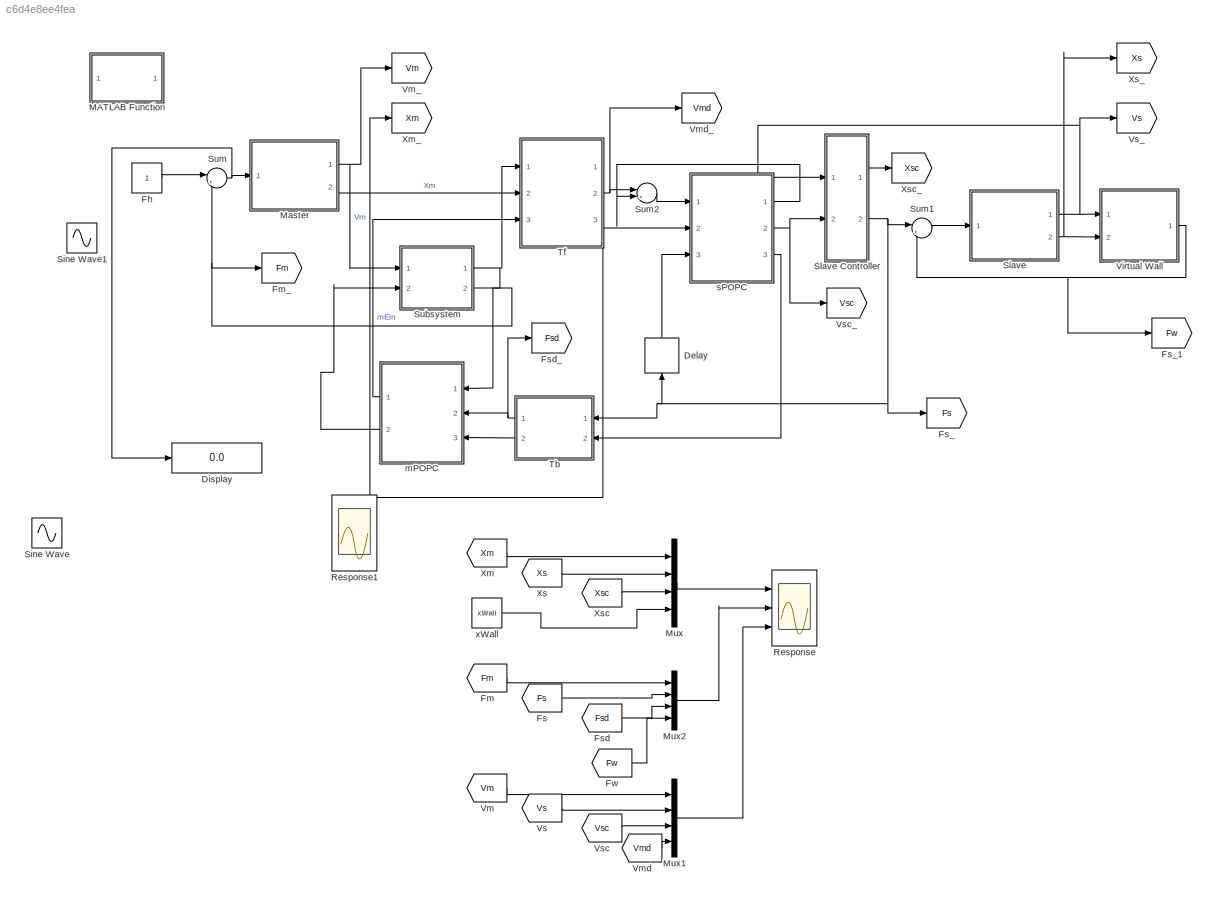
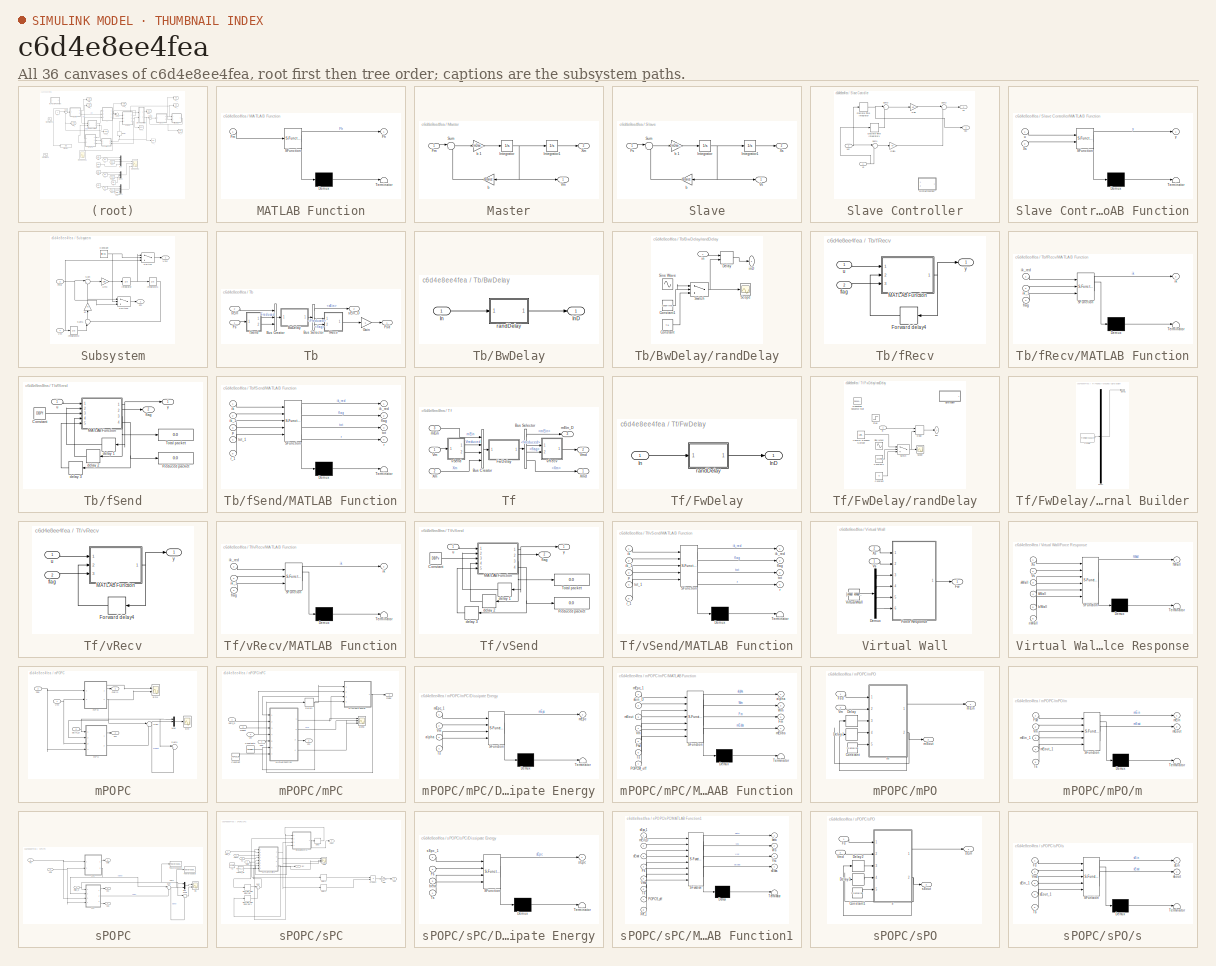
[diagram: thumbnail index - all 36 canvases of the model, root first then tree order]
MODEL slx_c6d4e8ee4fea
KIND model
BLOCK [Delay] Delay
  DelayLength = 1
  InitialCondition = 0
  InputPortMap = u0
  Ports = [1, 1]
  SampleTime = tSampling
BLOCK [Display] Display
  Decimation = 1
  Lockdown = off
  Ports = [1]
BLOCK [Constant] Fh
BLOCK [From] Fm
  GotoTag = Fm
BLOCK [Goto] Fm_
  GotoTag = Fm
BLOCK [From] Fs
  GotoTag = Fs
BLOCK [Goto] Fs_
  GotoTag = Fs
BLOCK [Goto] Fs_1
  GotoTag = Fw
BLOCK [From] Fsd
  GotoTag = Fsd
BLOCK [Goto] Fsd_
  GotoTag = Fsd
BLOCK [From] Fw
  GotoTag = Fw
BLOCK [SubSystem] MATLAB Function
  ErrorFcn = Stateflow.Translate.translate
  FunctionWithSeparateData = off
  MaskHideContents = off
  MinAlgLoopOccurrences = off
  Opaque = off
  PermitHierarchicalResolution = ExplicitOnly
  Ports = [1, 1]
  PropExecContextOutsideSubsystem = off
  RTWSystemCode = Auto
  RequestExecContextInheritance = off
  SFBlockType = MATLAB Function
  TreatAsAtomicUnit = on
BLOCK [Demux] MATLAB Function/ Demux 
  Outputs = 1
  Ports = [1, 1]
BLOCK [S-Function] MATLAB Function/ SFunction 
  EnableBusSupport = on
  FunctionName = sf_sfun
  PortCounts = [1 2]
  Ports = [1, 2]
  Tag = Stateflow S-Function simTPDA1 12
BLOCK [Terminator] MATLAB Function/ Terminator 
BLOCK [Outport] MATLAB Function/Fh
  IconDisplay = Port number
BLOCK [Inport] MATLAB Function/Fm
  IconDisplay = Port number
BLOCK [SubSystem] Master
  FunctionWithSeparateData = off
  MaskHideContents = off
  MinAlgLoopOccurrences = off
  Opaque = off
  Ports = [1, 2]
  PropExecContextOutsideSubsystem = off
  RTWSystemCode = Auto
  RequestExecContextInheritance = off
BLOCK [Inport] Master/Fm
  IconDisplay = Port number
BLOCK [Integrator] Master/Integrator
  InitialCondition = v0Device
  LowerSaturationLimit = -10
  Ports = [1, 1]
  UpperSaturationLimit = 10
BLOCK [Integrator] Master/Integrator1
  InitialCondition = xDevice
  LowerSaturationLimit = -10
  Ports = [1, 1]
  UpperSaturationLimit = 10
BLOCK [Sum] Master/Sum
  IconShape = round
  InputSameDT = off
  Inputs = |+-
  OutDataTypeStr = Inherit: Inherit via internal rule
  Ports = [2, 1]
  SaturateOnIntegerOverflow = off
BLOCK [Outport] Master/Vm
  IconDisplay = Port number
BLOCK [Outport] Master/Xm
  IconDisplay = Port number
  Port = 2
BLOCK [Gain] Master/b 
  Gain = bDevice
  OutDataTypeStr = Inherit: Inherit via internal rule
  ParamDataTypeStr = Inherit: Inherit via internal rule
  SaturateOnIntegerOverflow = off
BLOCK [Gain] Master/b 1
  Gain = 1/mDevice
  OutDataTypeStr = Inherit: Inherit via internal rule
  ParamDataTypeStr = Inherit: Inherit via internal rule
  SaturateOnIntegerOverflow = off
BLOCK [Mux] Mux
  DisplayOption = bar
  Ports = [4, 1]
BLOCK [Mux] Mux1
  DisplayOption = bar
  Ports = [4, 1]
BLOCK [Mux] Mux2
  DisplayOption = bar
  Ports = [4, 1]
BLOCK [Scope] Response
  DataFormat = StructureWithTime
  Decimation = 10
  Floating = off
  LegendLocations = 0.88327     0.76295    0.062038     0.10065\n0.89993     0.40517    0.055391     0.10065\n 0.8998     0.21759    0.058346     0.10065
  LimitDataPoints = off
  NumInputPorts = 3
  Ports = [3]
  SampleInput = on
  SampleTime = 0
  ShowLegends = on
  TimeRange = 4.291187739463602
  YMax = 1~150~175
  YMin = -3~-500~-150
BLOCK [Scope] Response1
  DataFormat = StructureWithTime
  Decimation = 10
  Floating = off
  LegendLocations = 0.80005     0.91405     0.15565    0.030394\n0.80005     0.60463     0.15565    0.030394\n0.80005     0.29522     0.15565    0.030394
  LimitDataPoints = off
  NumInputPorts = 3
  Ports = [3]
  SampleInput = on
  SampleTime = 0
  SaveName = ScopeData1
  ShowLegends = on
  TimeRange = 0.3838709677419353
  YMax = 10~1.5~1
  YMin = -45~-0.5~-1
BLOCK [Sin] Sine Wave
  Amplitude = 1.5
  Frequency = 10
  Ports = [0, 1]
  SampleTime = 0
BLOCK [Sin] Sine Wave1
  Bias = 1
  Frequency = 5
  Ports = [0, 1]
  SampleTime = 0
BLOCK [SubSystem] Slave
  FunctionWithSeparateData = off
  MaskHideContents = off
  MinAlgLoopOccurrences = off
  Opaque = off
  Ports = [1, 2]
  PropExecContextOutsideSubsystem = off
  RTWSystemCode = Auto
  RequestExecContextInheritance = off
BLOCK [SubSystem] Slave Controller
  FunctionWithSeparateData = off
  MaskHideContents = off
  MinAlgLoopOccurrences = off
  Opaque = off
  Ports = [2, 2]
  PropExecContextOutsideSubsystem = off
  RTWSystemCode = Auto
  RequestExecContextInheritance = off
BLOCK [DiscreteIntegrator] Slave Controller/Discrete-Time Integrator
  ICPrevOutput = DiscIntNeverNeededParam
  ICPrevScaledInput = DiscIntNeverNeededParam
  Ports = [1, 1]
  SampleTime = tSampling
BLOCK [DiscreteIntegrator] Slave Controller/Discrete-Time Integrator1
  ICPrevOutput = DiscIntNeverNeededParam
  ICPrevScaledInput = DiscIntNeverNeededParam
  Ports = [1, 1]
  SampleTime = tSampling
BLOCK [Outport] Slave Controller/Fs
  IconDisplay = Port number
  Port = 2
BLOCK [Gain] Slave Controller/Gain
  Gain = Kp
  OutDataTypeStr = Inherit: Inherit via internal rule
  ParamDataTypeStr = Inherit: Inherit via internal rule
  SaturateOnIntegerOverflow = off
BLOCK [Gain] Slave Controller/Gain1
  Gain = Kv
  OutDataTypeStr = Inherit: Inherit via internal rule
  ParamDataTypeStr = Inherit: Inherit via internal rule
  SaturateOnIntegerOverflow = off
BLOCK [SubSystem] Slave Controller/MATLAB Function
  ErrorFcn = Stateflow.Translate.translate
  FunctionWithSeparateData = off
  MaskHideContents = off
  MinAlgLoopOccurrences = off
  Opaque = off
  PermitHierarchicalResolution = ExplicitOnly
  Ports = [2, 1]
  PropExecContextOutsideSubsystem = off
  RTWSystemCode = Auto
  RequestExecContextInheritance = off
  SFBlockType = MATLAB Function
  TreatAsAtomicUnit = on
BLOCK [Demux] Slave Controller/MATLAB Function/ Demux 
  Outputs = 1
  Ports = [1, 1]
BLOCK [S-Function] Slave Controller/MATLAB Function/ SFunction 
  EnableBusSupport = on
  FunctionName = sf_sfun
  PortCounts = [2 2]
  Ports = [2, 2]
  Tag = Stateflow S-Function simTPDA1 11
BLOCK [Terminator] Slave Controller/MATLAB Function/ Terminator 
BLOCK [Inport] Slave Controller/MATLAB Function/Xs
  IconDisplay = Port number
  Port = 2
BLOCK [Inport] Slave Controller/MATLAB Function/u
  IconDisplay = Port number
BLOCK [Outport] Slave Controller/MATLAB Function/y
  IconDisplay = Port number
BLOCK [Sum] Slave Controller/Sum1
  IconShape = round
  InputSameDT = off
  Inputs = |+-
  OutDataTypeStr = Inherit: Inherit via internal rule
  Ports = [2, 1]
  SaturateOnIntegerOverflow = off
BLOCK [Sum] Slave Controller/Sum2
  IconShape = round
  InputSameDT = off
  Inputs = |++
  OutDataTypeStr = Inherit: Inherit via internal rule
  Ports = [2, 1]
  SaturateOnIntegerOverflow = off
BLOCK [Sum] Slave Controller/Sum3
  IconShape = round
  InputSameDT = off
  Inputs = |+-
  OutDataTypeStr = Inherit: Inherit via internal rule
  Ports = [2, 1]
  SaturateOnIntegerOverflow = off
BLOCK [Inport] Slave Controller/Vs
  IconDisplay = Port number
BLOCK [Inport] Slave Controller/Vsc
  IconDisplay = Port number
  Port = 2
BLOCK [Outport] Slave Controller/Xsc
  IconDisplay = Port number
BLOCK [Inport] Slave/Fs
  IconDisplay = Port number
BLOCK [Integrator] Slave/Integrator
  InitialCondition = v0Device
  LowerSaturationLimit = -10
  Ports = [1, 1]
  UpperSaturationLimit = 10
BLOCK [Integrator] Slave/Integrator1
  InitialCondition = xDevice
  LowerSaturationLimit = -10
  Ports = [1, 1]
  UpperSaturationLimit = 10
BLOCK [Sum] Slave/Sum
  IconShape = round
  InputSameDT = off
  Inputs = |+-
  OutDataTypeStr = Inherit: Inherit via internal rule
  Ports = [2, 1]
  SaturateOnIntegerOverflow = off
BLOCK [Outport] Slave/Vs
  IconDisplay = Port number
BLOCK [Outport] Slave/Xs
  IconDisplay = Port number
  Port = 2
BLOCK [Gain] Slave/b 
  Gain = bDevice
  OutDataTypeStr = Inherit: Inherit via internal rule
  ParamDataTypeStr = Inherit: Inherit via internal rule
  SaturateOnIntegerOverflow = off
BLOCK [Gain] Slave/b 1
  Gain = 1/mDevice
  OutDataTypeStr = Inherit: Inherit via internal rule
  ParamDataTypeStr = Inherit: Inherit via internal rule
  SaturateOnIntegerOverflow = off
BLOCK [SubSystem] Subsystem
  FunctionWithSeparateData = off
  MaskHideContents = off
  MinAlgLoopOccurrences = off
  Opaque = off
  Ports = [2, 2]
  PropExecContextOutsideSubsystem = off
  RTWSystemCode = Auto
  RequestExecContextInheritance = off
BLOCK [Gain] Subsystem/1//mc
  Gain = 1/mc
  OutDataTypeStr = Inherit: Inherit via internal rule
  ParamDataTypeStr = Inherit: Inherit via internal rule
  SaturateOnIntegerOverflow = off
BLOCK [Constant] Subsystem/Constant
  Value = filterON
BLOCK [Outport] Subsystem/Fm
  IconDisplay = Port number
  Port = 2
BLOCK [Inport] Subsystem/Fmd
  IconDisplay = Port number
  Port = 2
BLOCK [Integrator] Subsystem/Integrator
  Ports = [1, 1]
BLOCK [Integrator] Subsystem/Integrator1
  Ports = [1, 1]
BLOCK [Integrator] Subsystem/Integrator2
  Ports = [1, 1]
BLOCK [Sum] Subsystem/Sum
  IconShape = round
  InputSameDT = off
  Inputs = |+-
  OutDataTypeStr = Inherit: Inherit via internal rule
  Ports = [2, 1]
  SaturateOnIntegerOverflow = off
BLOCK [Sum] Subsystem/Sum1
  IconShape = round
  InputSameDT = off
  Inputs = |-+
  OutDataTypeStr = Inherit: Inherit via internal rule
  Ports = [2, 1]
  SaturateOnIntegerOverflow = off
BLOCK [Switch] Subsystem/Switch
  Criteria = u2 > Threshold
  InputSameDT = off
  SaturateOnIntegerOverflow = off
BLOCK [Switch] Subsystem/Switch1
  Criteria = u2 > Threshold
  InputSameDT = off
  SaturateOnIntegerOverflow = off
BLOCK [Inport] Subsystem/Vm
  IconDisplay = Port number
BLOCK [Outport] Subsystem/Vmc
  IconDisplay = Port number
BLOCK [Gain] Subsystem/kc
  Gain = kc
  OutDataTypeStr = Inherit: Inherit via internal rule
  ParamDataTypeStr = Inherit: Inherit via internal rule
  SaturateOnIntegerOverflow = off
BLOCK [Sum] Sum
  IconShape = round
  InputSameDT = off
  Inputs = |++
  OutDataTypeStr = Inherit: Inherit via internal rule
  Ports = [2, 1]
  SaturateOnIntegerOverflow = off
BLOCK [Sum] Sum1
  IconShape = round
  InputSameDT = off
  Inputs = |++
  OutDataTypeStr = Inherit: Inherit via internal rule
  Ports = [2, 1]
  SaturateOnIntegerOverflow = off
BLOCK [Sum] Sum2
  IconShape = round
  InputSameDT = off
  Inputs = |++
  OutDataTypeStr = Inherit: Inherit via internal rule
  Ports = [2, 1]
  SaturateOnIntegerOverflow = off
BLOCK [SubSystem] Tb
  FunctionWithSeparateData = off
  MaskHideContents = off
  MinAlgLoopOccurrences = off
  Opaque = off
  Ports = [2, 2]
  PropExecContextOutsideSubsystem = off
  RTWSystemCode = Auto
  RequestExecContextInheritance = off
BLOCK [BusCreator] Tb/Bus Creator
  DisplayOption = bar
  Inputs = 3
  Ports = [3, 1]
BLOCK [BusSelector] Tb/Bus Selector
  OutputSignals = sEin,Freduced,flag
  Ports = [1, 3]
BLOCK [SubSystem] Tb/BwDelay
  FunctionWithSeparateData = off
  MaskHideContents = off
  MinAlgLoopOccurrences = off
  Opaque = off
  Ports = [1, 1]
  PropExecContextOutsideSubsystem = off
  RTWSystemCode = Auto
  RequestExecContextInheritance = off
BLOCK [Inport] Tb/BwDelay/In
  IconDisplay = Port number
BLOCK [Outport] Tb/BwDelay/InD
  IconDisplay = Port number
BLOCK [SubSystem] Tb/BwDelay/randDelay
  FunctionWithSeparateData = off
  MaskHideContents = off
  MinAlgLoopOccurrences = off
  Opaque = off
  Ports = [1, 1]
  PropExecContextOutsideSubsystem = off
  RTWSystemCode = Auto
  RequestExecContextInheritance = off
BLOCK [Constant] Tb/BwDelay/randDelay/Constant
  Value = Tb
BLOCK [Constant] Tb/BwDelay/randDelay/Constant1
  Value = randTime
BLOCK [Delay] Tb/BwDelay/randDelay/Delay
  DelayLength = T1
  DelayLengthSource = Input port
  DelayLengthUpperLimit = Tb
  InitialCondition = 0
  InputPortMap = u0,p1
  Ports = [2, 1]
  SampleTime = tSampling
BLOCK [Scope] Tb/BwDelay/randDelay/Scope
  DataFormat = StructureWithTime
  Floating = off
  LimitDataPoints = off
  NumInputPorts = 1
  Ports = [1]
  SaveName = ScopeData6
  ShowLegends = off
  YMax = 112.49995
  YMin = -12.49956
BLOCK [Sin] Tb/BwDelay/randDelay/Sine Wave
  Amplitude = Tb
  Bias = Tb+1
  Ports = [0, 1]
  SampleTime = tSampling
BLOCK [Switch] Tb/BwDelay/randDelay/Switch
  Criteria = u2 ~= 0
  InputSameDT = off
  SaturateOnIntegerOverflow = off
BLOCK [Inport] Tb/BwDelay/randDelay/in
  IconDisplay = Port number
BLOCK [Outport] Tb/BwDelay/randDelay/inD
  IconDisplay = Port number
BLOCK [Inport] Tb/Fs
  IconDisplay = Port number
BLOCK [Outport] Tb/Fsd
  IconDisplay = Port number
BLOCK [Gain] Tb/Gain
  Gain = -1
  OutDataTypeStr = Inherit: Inherit via internal rule
  ParamDataTypeStr = Inherit: Inherit via internal rule
  SaturateOnIntegerOverflow = off
BLOCK [SubSystem] Tb/fRecv
  FunctionWithSeparateData = off
  MaskHideContents = off
  MinAlgLoopOccurrences = off
  Opaque = off
  Ports = [2, 1]
  PropExecContextOutsideSubsystem = off
  RTWSystemCode = Auto
  RequestExecContextInheritance = off
BLOCK [Delay] Tb/fRecv/Forward delay4
  DelayLength = 1
  InitialCondition = 0
  InputPortMap = u0
  InputProcessing = Inherited
  Ports = [1, 1]
  SampleTime = tSampling
BLOCK [SubSystem] Tb/fRecv/MATLAB Function
  ErrorFcn = Stateflow.Translate.translate
  FunctionWithSeparateData = off
  MaskHideContents = off
  MinAlgLoopOccurrences = off
  Opaque = off
  PermitHierarchicalResolution = ExplicitOnly
  Ports = [3, 1]
  PropExecContextOutsideSubsystem = off
  RTWSystemCode = Auto
  RequestExecContextInheritance = off
  SFBlockType = MATLAB Function
  TreatAsAtomicUnit = on
BLOCK [Demux] Tb/fRecv/MATLAB Function/ Demux 
  Outputs = 1
  Ports = [1, 1]
BLOCK [S-Function] Tb/fRecv/MATLAB Function/ SFunction 
  EnableBusSupport = on
  FunctionName = sf_sfun
  PortCounts = [3 2]
  Ports = [3, 2]
  Tag = Stateflow S-Function simTPDA1 3
BLOCK [Terminator] Tb/fRecv/MATLAB Function/ Terminator 
BLOCK [Inport] Tb/fRecv/MATLAB Function/flag
  IconDisplay = Port number
  Port = 3
BLOCK [Outport] Tb/fRecv/MATLAB Function/ik
  IconDisplay = Port number
BLOCK [Inport] Tb/fRecv/MATLAB Function/ik_1
  IconDisplay = Port number
  Port = 2
BLOCK [Inport] Tb/fRecv/MATLAB Function/ik_red
  IconDisplay = Port number
BLOCK [Inport] Tb/fRecv/flag
  IconDisplay = Port number
  Port = 2
BLOCK [Inport] Tb/fRecv/u
  IconDisplay = Port number
BLOCK [Outport] Tb/fRecv/y
  IconDisplay = Port number
BLOCK [SubSystem] Tb/fSend
  FunctionWithSeparateData = off
  MaskHideContents = off
  MinAlgLoopOccurrences = off
  Opaque = off
  Ports = [1, 2]
  PropExecContextOutsideSubsystem = off
  RTWSystemCode = Auto
  RequestExecContextInheritance = off
BLOCK [Constant] Tb/fSend/Constant
  Value = DBPf
BLOCK [SubSystem] Tb/fSend/MATLAB Function
  ErrorFcn = Stateflow.Translate.translate
  FunctionWithSeparateData = off
  MaskHideContents = off
  MinAlgLoopOccurrences = off
  Opaque = off
  PermitHierarchicalResolution = ExplicitOnly
  Ports = [5, 4]
  PropExecContextOutsideSubsystem = off
  RTWSystemCode = Auto
  RequestExecContextInheritance = off
  SFBlockType = MATLAB Function
  TreatAsAtomicUnit = on
BLOCK [Demux] Tb/fSend/MATLAB Function/ Demux 
  Outputs = 1
  Ports = [1, 1]
BLOCK [S-Function] Tb/fSend/MATLAB Function/ SFunction 
  EnableBusSupport = on
  FunctionName = sf_sfun
  PortCounts = [5 5]
  Ports = [5, 5]
  Tag = Stateflow S-Function simTPDA1 8
BLOCK [Terminator] Tb/fSend/MATLAB Function/ Terminator 
BLOCK [Outport] Tb/fSend/MATLAB Function/flag
  IconDisplay = Port number
  Port = 2
BLOCK [Inport] Tb/fSend/MATLAB Function/ik
  IconDisplay = Port number
BLOCK [Inport] Tb/fSend/MATLAB Function/ik_1
  IconDisplay = Port number
  Port = 2
BLOCK [Outport] Tb/fSend/MATLAB Function/ik_red
  IconDisplay = Port number
BLOCK [Inport] Tb/fSend/MATLAB Function/p
  IconDisplay = Port number
  Port = 3
BLOCK [Outport] Tb/fSend/MATLAB Function/r
  IconDisplay = Port number
  Port = 4
BLOCK [Inport] Tb/fSend/MATLAB Function/r_1
  IconDisplay = Port number
  Port = 5
BLOCK [Outport] Tb/fSend/MATLAB Function/tot
  IconDisplay = Port number
  Port = 3
BLOCK [Inport] Tb/fSend/MATLAB Function/tot_1
  IconDisplay = Port number
  Port = 4
BLOCK [Display] Tb/fSend/Reduced packet
  Decimation = 1
  Format = long
  Lockdown = off
  Ports = [1]
BLOCK [Display] Tb/fSend/Total packet
  Decimation = 1
  Lockdown = off
  Ports = [1]
BLOCK [Delay] Tb/fSend/delay 1
  DelayLength = 1
  InitialCondition = 0
  InputPortMap = u0
  InputProcessing = Inherited
  Ports = [1, 1]
  SampleTime = tSampling
BLOCK [Delay] Tb/fSend/delay 2
  DelayLength = 1
  InitialCondition = 0
  InputPortMap = u0
  InputProcessing = Inherited
  Ports = [1, 1]
  SampleTime = tSampling
BLOCK [Delay] Tb/fSend/delay 3
  DelayLength = 1
  InitialCondition = 0
  InputPortMap = u0
  InputProcessing = Inherited
  Ports = [1, 1]
  SampleTime = tSampling
BLOCK [Outport] Tb/fSend/flag
  IconDisplay = Port number
  Port = 2
BLOCK [Inport] Tb/fSend/u
  IconDisplay = Port number
BLOCK [Outport] Tb/fSend/y
  IconDisplay = Port number
BLOCK [Inport] Tb/sEin
  IconDisplay = Port number
  Port = 2
BLOCK [Outport] Tb/sEin_D
  IconDisplay = Port number
  Port = 2
BLOCK [SubSystem] Tf
  FunctionWithSeparateData = off
  MaskHideContents = off
  MinAlgLoopOccurrences = off
  Opaque = off
  Ports = [3, 3]
  PropExecContextOutsideSubsystem = off
  RTWSystemCode = Auto
  RequestExecContextInheritance = off
BLOCK [BusCreator] Tf/Bus Creator
  DisplayOption = bar
  Ports = [4, 1]
BLOCK [BusSelector] Tf/Bus Selector
  OutputSignals = mEin,Vreduced,flag,Xm
  Ports = [1, 4]
BLOCK [SubSystem] Tf/FwDelay
  FunctionWithSeparateData = off
  MaskHideContents = off
  MinAlgLoopOccurrences = off
  Opaque = off
  Ports = [1, 1]
  PropExecContextOutsideSubsystem = off
  RTWSystemCode = Auto
  RequestExecContextInheritance = off
BLOCK [Inport] Tf/FwDelay/In
  IconDisplay = Port number
BLOCK [Outport] Tf/FwDelay/InD
  IconDisplay = Port number
BLOCK [SubSystem] Tf/FwDelay/randDelay
  FunctionWithSeparateData = off
  MaskHideContents = off
  MinAlgLoopOccurrences = off
  Opaque = off
  Ports = [1, 1]
  PropExecContextOutsideSubsystem = off
  RTWSystemCode = Auto
  RequestExecContextInheritance = off
BLOCK [Constant] Tf/FwDelay/randDelay/Constant
  Value = Tf
BLOCK [Constant] Tf/FwDelay/randDelay/Constant1
  Value = randTime
BLOCK [Delay] Tf/FwDelay/randDelay/Delay
  DelayLength = T1
  DelayLengthSource = Input port
  DelayLengthUpperLimit = 5000
  InitialCondition = 0
  InputPortMap = u0,p1
  Ports = [2, 1]
  SampleTime = tSampling
BLOCK [Reference] Tf/FwDelay/randDelay/Repeating Sequence Stair  REF=simulink/Sources/Repeating
Sequence
Stair
  ConRadixGroup = Best Precision: Vector-wise
  LockScale = off
  OutDataType = fixdt(0,8)
  OutDataTypeStr = double
  OutMax = []
  OutMin = []
  OutScaling = 2^-12
  OutValues = [10 600].'
  OutputDataTypeScalingMode = double
  Ports = [0, 1]
  SourceBlock = simulink/Sources/Repeating\nSequence\nStair
  SourceType = Repeating Sequence Stair
  tsamp = tSampling
BLOCK [Scope] Tf/FwDelay/randDelay/Scope
  DataFormat = StructureWithTime
  Floating = off
  LimitDataPoints = off
  NumInputPorts = 1
  Ports = [1]
  SaveName = ScopeData6
  ShowLegends = off
  YMax = 843.75
  YMin = -93.75
BLOCK [SubSystem] Tf/FwDelay/randDelay/Signal Builder
  ClipboardFcn = sigbuilder_block('clipboard');
  CloseFcn = sigbuilder_block('close');
  ContinueFcn = sigbuilder_block('continue');
  CopyFcn = sigbuilder_block('copy');
  DeleteFcn = sigbuilder_block('delete');
  FunctionWithSeparateData = off
  LoadFcn = sigbuilder_block('load');
  MaskHideContents = on
  MinAlgLoopOccurrences = off
  ModelCloseFcn = sigbuilder_block('modelClose');
  NameChangeFcn = sigbuilder_block('namechange');
  Opaque = off
  OpenFcn = sigbuilder_block('open',[0 28.5 1015.5 483.75 ]);
  PauseFcn = sigbuilder_block('pause');
  Ports = [0, 1]
  PreSaveFcn = sigbuilder_block('preSave');
  PropExecContextOutsideSubsystem = off
  RTWSystemCode = Auto
  RequestExecContextInheritance = off
  StartFcn = sigbuilder_block('start');
  StopFcn = sigbuilder_block('stop');
  Tag = STV Subsys
BLOCK [Demux] Tf/FwDelay/randDelay/Signal Builder/Demux
  Outputs = 1
  Ports = [1, 1]
  Tag = STV Demux
BLOCK [FromWorkspace] Tf/FwDelay/randDelay/Signal Builder/FromWs
  SampleTime = 0
  Tag = STV FromWs
  VariableName = tuvar
  ZeroCross = on
BLOCK [Outport] Tf/FwDelay/randDelay/Signal Builder/Signal 1
  IconDisplay = Port number
  Tag = STV Outport
BLOCK [Sin] Tf/FwDelay/randDelay/Sine Wave
  Amplitude = Tf
  Bias = Tf+1
  Frequency = 10000
  Phase = pi/2
  Ports = [0, 1]
  SampleTime = tSampling
BLOCK [Step] Tf/FwDelay/randDelay/Step
  After = 400
  Before = 100
  SampleTime = 0
  Time = 2
BLOCK [Switch] Tf/FwDelay/randDelay/Switch
  Criteria = u2 ~= 0
  InputSameDT = off
  SaturateOnIntegerOverflow = off
BLOCK [UniformRandomNumber] Tf/FwDelay/randDelay/Uniform Random Number
  Maximum = Tf+1
  Minimum = 1
  SampleTime = tSampling
BLOCK [Inport] Tf/FwDelay/randDelay/in
  IconDisplay = Port number
BLOCK [Outport] Tf/FwDelay/randDelay/inD
  IconDisplay = Port number
BLOCK [Inport] Tf/Vm
  IconDisplay = Port number
BLOCK [Outport] Tf/Vmd
  IconDisplay = Port number
  Port = 2
BLOCK [Inport] Tf/Xm
  IconDisplay = Port number
  Port = 2
BLOCK [Outport] Tf/Xmd
  IconDisplay = Port number
BLOCK [Inport] Tf/mEin
  IconDisplay = Port number
  Port = 3
BLOCK [Outport] Tf/mEin_D
  IconDisplay = Port number
  Port = 3
BLOCK [SubSystem] Tf/vRecv
  FunctionWithSeparateData = off
  MaskHideContents = off
  MinAlgLoopOccurrences = off
  Opaque = off
  Ports = [2, 1]
  PropExecContextOutsideSubsystem = off
  RTWSystemCode = Auto
  RequestExecContextInheritance = off
BLOCK [Delay] Tf/vRecv/Forward delay4
  DelayLength = 1
  InitialCondition = 0
  InputPortMap = u0
  InputProcessing = Inherited
  Ports = [1, 1]
  SampleTime = tSampling
BLOCK [SubSystem] Tf/vRecv/MATLAB Function
  ErrorFcn = Stateflow.Translate.translate
  FunctionWithSeparateData = off
  MaskHideContents = off
  MinAlgLoopOccurrences = off
  Opaque = off
  PermitHierarchicalResolution = ExplicitOnly
  Ports = [3, 1]
  PropExecContextOutsideSubsystem = off
  RTWSystemCode = Auto
  RequestExecContextInheritance = off
  SFBlockType = MATLAB Function
  TreatAsAtomicUnit = on
BLOCK [Demux] Tf/vRecv/MATLAB Function/ Demux 
  Outputs = 1
  Ports = [1, 1]
BLOCK [S-Function] Tf/vRecv/MATLAB Function/ SFunction 
  EnableBusSupport = on
  FunctionName = sf_sfun
  PortCounts = [3 2]
  Ports = [3, 2]
  Tag = Stateflow S-Function simTPDA1 14
BLOCK [Terminator] Tf/vRecv/MATLAB Function/ Terminator 
BLOCK [Inport] Tf/vRecv/MATLAB Function/flag
  IconDisplay = Port number
  Port = 3
BLOCK [Outport] Tf/vRecv/MATLAB Function/ik
  IconDisplay = Port number
BLOCK [Inport] Tf/vRecv/MATLAB Function/ik_1
  IconDisplay = Port number
  Port = 2
BLOCK [Inport] Tf/vRecv/MATLAB Function/ik_red
  IconDisplay = Port number
BLOCK [Inport] Tf/vRecv/flag
  IconDisplay = Port number
  Port = 2
BLOCK [Inport] Tf/vRecv/u
  IconDisplay = Port number
BLOCK [Outport] Tf/vRecv/y
  IconDisplay = Port number
BLOCK [SubSystem] Tf/vSend
  FunctionWithSeparateData = off
  MaskHideContents = off
  MinAlgLoopOccurrences = off
  Opaque = off
  Ports = [1, 2]
  PropExecContextOutsideSubsystem = off
  RTWSystemCode = Auto
  RequestExecContextInheritance = off
BLOCK [Constant] Tf/vSend/Constant
  Value = DBPv
BLOCK [SubSystem] Tf/vSend/MATLAB Function
  ErrorFcn = Stateflow.Translate.translate
  FunctionWithSeparateData = off
  MaskHideContents = off
  MinAlgLoopOccurrences = off
  Opaque = off
  PermitHierarchicalResolution = ExplicitOnly
  Ports = [5, 4]
  PropExecContextOutsideSubsystem = off
  RTWSystemCode = Auto
  RequestExecContextInheritance = off
  SFBlockType = MATLAB Function
  TreatAsAtomicUnit = on
BLOCK [Demux] Tf/vSend/MATLAB Function/ Demux 
  Outputs = 1
  Ports = [1, 1]
BLOCK [S-Function] Tf/vSend/MATLAB Function/ SFunction 
  EnableBusSupport = on
  FunctionName = sf_sfun
  PortCounts = [5 5]
  Ports = [5, 5]
  Tag = Stateflow S-Function simTPDA1 10
BLOCK [Terminator] Tf/vSend/MATLAB Function/ Terminator 
BLOCK [Outport] Tf/vSend/MATLAB Function/flag
  IconDisplay = Port number
  Port = 2
BLOCK [Inport] Tf/vSend/MATLAB Function/ik
  IconDisplay = Port number
BLOCK [Inport] Tf/vSend/MATLAB Function/ik_1
  IconDisplay = Port number
  Port = 2
BLOCK [Outport] Tf/vSend/MATLAB Function/ik_red
  IconDisplay = Port number
BLOCK [Inport] Tf/vSend/MATLAB Function/p
  IconDisplay = Port number
  Port = 3
BLOCK [Outport] Tf/vSend/MATLAB Function/r
  IconDisplay = Port number
  Port = 4
BLOCK [Inport] Tf/vSend/MATLAB Function/r_1
  IconDisplay = Port number
  Port = 5
BLOCK [Outport] Tf/vSend/MATLAB Function/tot
  IconDisplay = Port number
  Port = 3
BLOCK [Inport] Tf/vSend/MATLAB Function/tot_1
  IconDisplay = Port number
  Port = 4
BLOCK [Display] Tf/vSend/Reduced packet
  Decimation = 1
  Lockdown = off
  Ports = [1]
BLOCK [Display] Tf/vSend/Total packet
  Decimation = 1
  Lockdown = off
  Ports = [1]
BLOCK [Delay] Tf/vSend/delay 1
  DelayLength = 1
  InitialCondition = 0
  InputPortMap = u0
  InputProcessing = Inherited
  Ports = [1, 1]
  SampleTime = tSampling
BLOCK [Delay] Tf/vSend/delay 2
  DelayLength = 1
  InitialCondition = 0
  InputPortMap = u0
  InputProcessing = Inherited
  Ports = [1, 1]
  SampleTime = tSampling
BLOCK [Delay] Tf/vSend/delay 3
  DelayLength = 1
  InitialCondition = 0
  InputPortMap = u0
  InputProcessing = Inherited
  Ports = [1, 1]
  SampleTime = tSampling
BLOCK [Outport] Tf/vSend/flag
  IconDisplay = Port number
  Port = 2
BLOCK [Inport] Tf/vSend/u
  IconDisplay = Port number
BLOCK [Outport] Tf/vSend/y
  IconDisplay = Port number
BLOCK [SubSystem] Virtual Wall
  FunctionWithSeparateData = off
  MaskHideContents = off
  MinAlgLoopOccurrences = off
  Opaque = off
  Ports = [2, 1]
  PropExecContextOutsideSubsystem = off
  RTWSystemCode = Auto
  RequestExecContextInheritance = off
BLOCK [Demux] Virtual Wall/Demux
  DisplayOption = bar
  Ports = [1, 4]
BLOCK [SubSystem] Virtual Wall/Force Response
  ErrorFcn = Stateflow.Translate.translate
  FunctionWithSeparateData = off
  MaskHideContents = off
  MinAlgLoopOccurrences = off
  Opaque = off
  PermitHierarchicalResolution = ExplicitOnly
  Ports = [6, 1]
  PropExecContextOutsideSubsystem = off
  RTWSystemCode = Auto
  RequestExecContextInheritance = off
  SFBlockType = MATLAB Function
  TreatAsAtomicUnit = on
BLOCK [Demux] Virtual Wall/Force Response/ Demux 
  Outputs = 1
  Ports = [1, 1]
BLOCK [S-Function] Virtual Wall/Force Response/ SFunction 
  EnableBusSupport = on
  FunctionName = sf_sfun
  PortCounts = [6 2]
  Ports = [6, 2]
  Tag = Stateflow S-Function simTPDA1 9
BLOCK [Terminator] Virtual Wall/Force Response/ Terminator 
BLOCK [Inport] Virtual Wall/Force Response/Vs
  IconDisplay = Port number
  Port = 2
BLOCK [Inport] Virtual Wall/Force Response/Xs
  IconDisplay = Port number
BLOCK [Inport] Virtual Wall/Force Response/bWall
  IconDisplay = Port number
  Port = 5
BLOCK [Outport] Virtual Wall/Force Response/fWall
  IconDisplay = Port number
BLOCK [Inport] Virtual Wall/Force Response/kWall
  IconDisplay = Port number
  Port = 4
BLOCK [Inport] Virtual Wall/Force Response/nWall
  IconDisplay = Port number
  Port = 6
BLOCK [Inport] Virtual Wall/Force Response/xWall
  IconDisplay = Port number
  Port = 3
BLOCK [Outport] Virtual Wall/Fw
  IconDisplay = Port number
BLOCK [Constant] Virtual Wall/VirtualWall
  Value = [xWall kWall bWall nWall]
  VectorParams1D = off
BLOCK [Inport] Virtual Wall/Vs
  IconDisplay = Port number
BLOCK [Inport] Virtual Wall/Xs
  IconDisplay = Port number
  Port = 2
BLOCK [From] Vm
  GotoTag = Vm
BLOCK [Goto] Vm_
  GotoTag = Vm
BLOCK [From] Vmd
  GotoTag = Vmd
BLOCK [Goto] Vmd_
  GotoTag = Vmd
BLOCK [From] Vs
  GotoTag = Vs
BLOCK [Goto] Vs_
  GotoTag = Vs
BLOCK [From] Vsc
  GotoTag = Vsc
BLOCK [Goto] Vsc_
  GotoTag = Vsc
BLOCK [From] Xm
  GotoTag = Xm
BLOCK [Goto] Xm_
  GotoTag = Xm
BLOCK [From] Xs
  GotoTag = Xs
BLOCK [Goto] Xs_
  GotoTag = Xs
BLOCK [From] Xsc
  GotoTag = Xsc
BLOCK [Goto] Xsc_
  GotoTag = Xsc
BLOCK [SubSystem] mPOPC
  FunctionWithSeparateData = off
  MaskHideContents = off
  MinAlgLoopOccurrences = off
  Opaque = off
  Ports = [3, 2]
  PropExecContextOutsideSubsystem = off
  RTWSystemCode = Auto
  RequestExecContextInheritance = off
BLOCK [Scope] mPOPC/Em
  Floating = off
  LegendLocations = 0.90032     0.86898    0.077599    0.076205
  LimitDataPoints = off
  NumInputPorts = 1
  Ports = [1]
  SaveName = F
  ShowLegends = on
  TimeRange = 0.8967741935483869
  YMax = 8.725e+06
  YMin = 8.25e+06
BLOCK [Scope] mPOPC/Em1
  Floating = off
  LimitDataPoints = off
  NumInputPorts = 2
  Ports = [2]
  SaveName = F2
  ShowLegends = on
  TimeRange = 0.8967741935483869
  YMax = 8.725e+06~5
  YMin = 8.25e+06~-5
BLOCK [Outport] mPOPC/Fm
  IconDisplay = Port number
  Port = 2
BLOCK [Inport] mPOPC/Fsd
  IconDisplay = Port number
  Port = 2
BLOCK [Mux] mPOPC/Mux
  DisplayOption = bar
  Inputs = 3
  Ports = [3, 1]
BLOCK [Sum] mPOPC/Sum
  IconShape = round
  InputSameDT = off
  Inputs = |+-
  OutDataTypeStr = Inherit: Inherit via internal rule
  Ports = [2, 1]
  SaturateOnIntegerOverflow = off
BLOCK [Sum] mPOPC/Sum1
  IconShape = round
  InputSameDT = off
  Inputs = |+-
  OutDataTypeStr = Inherit: Inherit via internal rule
  Ports = [2, 1]
  SaturateOnIntegerOverflow = off
BLOCK [Inport] mPOPC/Vm
  IconDisplay = Port number
BLOCK [Outport] mPOPC/mEin
  IconDisplay = Port number
BLOCK [SubSystem] mPOPC/mPC
  FunctionWithSeparateData = off
  MaskHideContents = off
  MinAlgLoopOccurrences = off
  Opaque = off
  Ports = [4, 2]
  PropExecContextOutsideSubsystem = off
  RTWSystemCode = Auto
  RequestExecContextInheritance = off
BLOCK [Constant] mPOPC/mPC/Constant
  Value = POPCM_off
BLOCK [Constant] mPOPC/mPC/Constant2
  Value = tSampling
BLOCK [Delay] mPOPC/mPC/Delay1
  DelayLength = 1
  InitialCondition = 0
  InputPortMap = u0
  InputProcessing = Inherited
  Ports = [1, 1]
  SampleTime = tSampling
BLOCK [SubSystem] mPOPC/mPC/Dissipate Energy
  ErrorFcn = Stateflow.Translate.translate
  FunctionWithSeparateData = off
  MaskHideContents = off
  MinAlgLoopOccurrences = off
  Opaque = off
  PermitHierarchicalResolution = ExplicitOnly
  Ports = [4, 1]
  PropExecContextOutsideSubsystem = off
  RTWSystemCode = Auto
  RequestExecContextInheritance = off
  SFBlockType = MATLAB Function
  TreatAsAtomicUnit = on
BLOCK [Demux] mPOPC/mPC/Dissipate Energy/ Demux 
  Outputs = 1
  Ports = [1, 1]
BLOCK [S-Function] mPOPC/mPC/Dissipate Energy/ SFunction 
  EnableBusSupport = on
  FunctionName = sf_sfun
  PortCounts = [4 2]
  Ports = [4, 2]
  Tag = Stateflow S-Function simTPDA1 5
BLOCK [Terminator] mPOPC/mPC/Dissipate Energy/ Terminator 
BLOCK [Inport] mPOPC/mPC/Dissipate Energy/Ts
  IconDisplay = Port number
  Port = 4
BLOCK [Inport] mPOPC/mPC/Dissipate Energy/Vm
  IconDisplay = Port number
  Port = 2
BLOCK [Inport] mPOPC/mPC/Dissipate Energy/alpha
  IconDisplay = Port number
  Port = 3
BLOCK [Outport] mPOPC/mPC/Dissipate Energy/mEpc
  IconDisplay = Port number
BLOCK [Inport] mPOPC/mPC/Dissipate Energy/mEpc_1
  IconDisplay = Port number
BLOCK [Outport] mPOPC/mPC/Fm
  IconDisplay = Port number
BLOCK [Inport] mPOPC/mPC/Fsd
  IconDisplay = Port number
  Port = 4
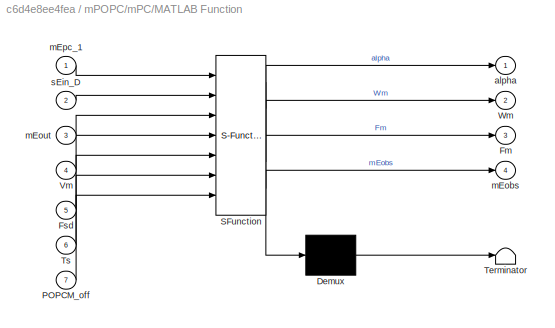
BLOCK [SubSystem] mPOPC/mPC/MATLAB Function
  ErrorFcn = Stateflow.Translate.translate
  FunctionWithSeparateData = off
  MaskHideContents = off
  MinAlgLoopOccurrences = off
  Opaque = off
  PermitHierarchicalResolution = ExplicitOnly
  Ports = [7, 4]
  PropExecContextOutsideSubsystem = off
  RTWSystemCode = Auto
  RequestExecContextInheritance = off
  SFBlockType = MATLAB Function
  TreatAsAtomicUnit = on
BLOCK [Demux] mPOPC/mPC/MATLAB Function/ Demux 
  Outputs = 1
  Ports = [1, 1]
BLOCK [S-Function] mPOPC/mPC/MATLAB Function/ SFunction 
  EnableBusSupport = on
  FunctionName = sf_sfun
  PortCounts = [7 5]
  Ports = [7, 5]
  Tag = Stateflow S-Function simTPDA1 6
BLOCK [Terminator] mPOPC/mPC/MATLAB Function/ Terminator 
BLOCK [Outport] mPOPC/mPC/MATLAB Function/Fm
  IconDisplay = Port number
  Port = 3
BLOCK [Inport] mPOPC/mPC/MATLAB Function/Fsd
  IconDisplay = Port number
  Port = 5
BLOCK [Inport] mPOPC/mPC/MATLAB Function/POPCM_off
  IconDisplay = Port number
  Port = 7
BLOCK [Inport] mPOPC/mPC/MATLAB Function/Ts
  IconDisplay = Port number
  Port = 6
BLOCK [Inport] mPOPC/mPC/MATLAB Function/Vm
  IconDisplay = Port number
  Port = 4
BLOCK [Outport] mPOPC/mPC/MATLAB Function/Wm
  IconDisplay = Port number
  Port = 2
BLOCK [Outport] mPOPC/mPC/MATLAB Function/alpha
  IconDisplay = Port number
BLOCK [Outport] mPOPC/mPC/MATLAB Function/mEobs
  IconDisplay = Port number
  Port = 4
BLOCK [Inport] mPOPC/mPC/MATLAB Function/mEout
  IconDisplay = Port number
  Port = 3
BLOCK [Inport] mPOPC/mPC/MATLAB Function/mEpc_1
  IconDisplay = Port number
BLOCK [Inport] mPOPC/mPC/MATLAB Function/sEin_D
  IconDisplay = Port number
  Port = 2
BLOCK [Inport] mPOPC/mPC/Vm
  IconDisplay = Port number
  Port = 3
BLOCK [Scope] mPOPC/mPC/alpha
  DataFormat = StructureWithTime
  Floating = off
  LimitDataPoints = off
  NumInputPorts = 3
  Ports = [3]
  SampleTime = 0
  SaveName = ScopeData3
  ShowLegends = off
  TimeRange = 10
  YMax = 8~3.5~5
  YMin = -1~0~-5
BLOCK [Inport] mPOPC/mPC/mEout
  IconDisplay = Port number
  Port = 2
BLOCK [Outport] mPOPC/mPC/mEpc 
  IconDisplay = Port number
  Port = 2
BLOCK [Inport] mPOPC/mPC/sEin_D
  IconDisplay = Port number
BLOCK [SubSystem] mPOPC/mPO
  FunctionWithSeparateData = off
  MaskHideContents = off
  MinAlgLoopOccurrences = off
  Opaque = off
  Ports = [2, 2]
  PropExecContextOutsideSubsystem = off
  RTWSystemCode = Auto
  RequestExecContextInheritance = off
BLOCK [Constant] mPOPC/mPO/Constant
  Value = tSampling
BLOCK [Delay] mPOPC/mPO/Delay
  DelayLength = 1
  InitialCondition = 0
  InputPortMap = u0
  InputProcessing = Inherited
  Ports = [1, 1]
  SampleTime = tSampling
BLOCK [Delay] mPOPC/mPO/Delay1
  DelayLength = 1
  InitialCondition = 0
  InputPortMap = u0
  InputProcessing = Inherited
  Ports = [1, 1]
  SampleTime = tSampling
BLOCK [Inport] mPOPC/mPO/Fsd
  IconDisplay = Port number
BLOCK [Inport] mPOPC/mPO/Vm
  IconDisplay = Port number
  Port = 2
BLOCK [SubSystem] mPOPC/mPO/m
  ErrorFcn = Stateflow.Translate.translate
  FunctionWithSeparateData = off
  MaskHideContents = off
  MinAlgLoopOccurrences = off
  Opaque = off
  PermitHierarchicalResolution = ExplicitOnly
  Ports = [5, 2]
  PropExecContextOutsideSubsystem = off
  RTWSystemCode = Auto
  RequestExecContextInheritance = off
  SFBlockType = MATLAB Function
  TreatAsAtomicUnit = on
BLOCK [Demux] mPOPC/mPO/m/ Demux 
  Outputs = 1
  Ports = [1, 1]
BLOCK [S-Function] mPOPC/mPO/m/ SFunction 
  EnableBusSupport = on
  FunctionName = sf_sfun
  PortCounts = [5 3]
  Ports = [5, 3]
  Tag = Stateflow S-Function simTPDA1 2
BLOCK [Terminator] mPOPC/mPO/m/ Terminator 
BLOCK [Inport] mPOPC/mPO/m/Fsd
  IconDisplay = Port number
BLOCK [Inport] mPOPC/mPO/m/Ts
  IconDisplay = Port number
  Port = 5
BLOCK [Inport] mPOPC/mPO/m/Vm
  IconDisplay = Port number
  Port = 2
BLOCK [Outport] mPOPC/mPO/m/mEin
  IconDisplay = Port number
BLOCK [Inport] mPOPC/mPO/m/mEin_1
  IconDisplay = Port number
  Port = 3
BLOCK [Outport] mPOPC/mPO/m/mEout
  IconDisplay = Port number
  Port = 2
BLOCK [Inport] mPOPC/mPO/m/mEout_1
  IconDisplay = Port number
  Port = 4
BLOCK [Outport] mPOPC/mPO/mEin
  IconDisplay = Port number
BLOCK [Outport] mPOPC/mPO/mEout
  IconDisplay = Port number
  Port = 2
BLOCK [Inport] mPOPC/sEin_D
  IconDisplay = Port number
  Port = 3
BLOCK [SubSystem] sPOPC
  FunctionWithSeparateData = off
  MaskHideContents = off
  MinAlgLoopOccurrences = off
  Opaque = off
  Ports = [3, 3]
  PropExecContextOutsideSubsystem = off
  RTWSystemCode = Auto
  RequestExecContextInheritance = off
BLOCK [Scope] sPOPC/Es
  Floating = off
  LegendLocations = 0.80638     0.70327    0.078287     0.07723\n0.91494     0.45039    0.062777    0.030394
  LimitDataPoints = off
  NumInputPorts = 2
  Ports = [2]
  SaveName = F1
  ShowLegends = on
  TimeRange = 20
  YMax = 19000~7000
  YMin = 0~-500
BLOCK [Inport] sPOPC/Fs
  IconDisplay = Port number
  Port = 3
BLOCK [Mux] sPOPC/Mux
  DisplayOption = bar
  Inputs = 3
  Ports = [3, 1]
BLOCK [Sum] sPOPC/Sum
  IconShape = round
  InputSameDT = off
  Inputs = |+-
  OutDataTypeStr = Inherit: Inherit via internal rule
  Ports = [2, 1]
  SaturateOnIntegerOverflow = off
BLOCK [Sum] sPOPC/Sum1
  IconShape = round
  InputSameDT = off
  Inputs = |+-
  OutDataTypeStr = Inherit: Inherit via internal rule
  Ports = [2, 1]
  SaturateOnIntegerOverflow = off
BLOCK [ToWorkspace] sPOPC/To Workspace
  MaxDataPoints = inf
  Ports = [1]
  SampleTime = -1
  SaveFormat = Timeseries
  VariableName = E1
BLOCK [ToWorkspace] sPOPC/To Workspace1
  MaxDataPoints = inf
  Ports = [1]
  SampleTime = -1
  SaveFormat = Timeseries
  VariableName = M1
BLOCK [Outport] sPOPC/Vad
  IconDisplay = Port number
BLOCK [Inport] sPOPC/Vmd
  IconDisplay = Port number
BLOCK [Outport] sPOPC/Vsc
  IconDisplay = Port number
  Port = 2
BLOCK [Inport] sPOPC/mEin_D
  IconDisplay = Port number
  Port = 2
BLOCK [Outport] sPOPC/sEin
  IconDisplay = Port number
  Port = 3
BLOCK [SubSystem] sPOPC/sPC
  FunctionWithSeparateData = off
  MaskHideContents = off
  MinAlgLoopOccurrences = off
  Opaque = off
  Ports = [4, 3]
  PropExecContextOutsideSubsystem = off
  RTWSystemCode = Auto
  RequestExecContextInheritance = off
BLOCK [Delay] sPOPC/sPC/Delay
  DelayLength = 1
  InitialCondition = 0
  InputPortMap = u0
  InputProcessing = Inherited
  Ports = [1, 1]
  SampleTime = tSampling
BLOCK [Delay] sPOPC/sPC/Delay3
  DelayLength = 1
  InitialCondition = 0
  InputPortMap = u0
  InputProcessing = Inherited
  Ports = [1, 1]
  SampleTime = tSampling
BLOCK [Delay] sPOPC/sPC/Delay4
  DelayLength = 1
  InitialCondition = 0
  InputPortMap = u0
  InputProcessing = Inherited
  Ports = [1, 1]
  SampleTime = tSampling
BLOCK [DiscreteIntegrator] sPOPC/sPC/Discrete-Time Integrator
  ICPrevOutput = DiscIntNeverNeededParam
  ICPrevScaledInput = DiscIntNeverNeededParam
  Ports = [1, 1]
  SampleTime = tSampling
BLOCK [DiscreteIntegrator] sPOPC/sPC/Discrete-Time Integrator1
  ICPrevOutput = DiscIntNeverNeededParam
  ICPrevScaledInput = DiscIntNeverNeededParam
  Ports = [1, 1]
  SampleTime = tSampling
BLOCK [SubSystem] sPOPC/sPC/Dissipate Energy
  ErrorFcn = Stateflow.Translate.translate
  FunctionWithSeparateData = off
  MaskHideContents = off
  MinAlgLoopOccurrences = off
  Opaque = off
  PermitHierarchicalResolution = ExplicitOnly
  Ports = [4, 1]
  PropExecContextOutsideSubsystem = off
  RTWSystemCode = Auto
  RequestExecContextInheritance = off
  SFBlockType = MATLAB Function
  TreatAsAtomicUnit = on
BLOCK [Demux] sPOPC/sPC/Dissipate Energy/ Demux 
  Outputs = 1
  Ports = [1, 1]
BLOCK [S-Function] sPOPC/sPC/Dissipate Energy/ SFunction 
  EnableBusSupport = on
  FunctionName = sf_sfun
  PortCounts = [4 2]
  Ports = [4, 2]
  Tag = Stateflow S-Function simTPDA1 4
BLOCK [Terminator] sPOPC/sPC/Dissipate Energy/ Terminator 
BLOCK [Inport] sPOPC/sPC/Dissipate Energy/Fs
  IconDisplay = Port number
  Port = 2
BLOCK [Inport] sPOPC/sPC/Dissipate Energy/Ts
  IconDisplay = Port number
  Port = 4
BLOCK [Inport] sPOPC/sPC/Dissipate Energy/beta
  IconDisplay = Port number
  Port = 3
BLOCK [Outport] sPOPC/sPC/Dissipate Energy/sEpc
  IconDisplay = Port number
BLOCK [Inport] sPOPC/sPC/Dissipate Energy/sEpc_1
  IconDisplay = Port number
BLOCK [Inport] sPOPC/sPC/Fs
  IconDisplay = Port number
  Port = 3
BLOCK [Gain] sPOPC/sPC/Gain
  Gain = posCompensation
  OutDataTypeStr = Inherit: Inherit via internal rule
  ParamDataTypeStr = Inherit: Inherit via internal rule
  SaturateOnIntegerOverflow = off
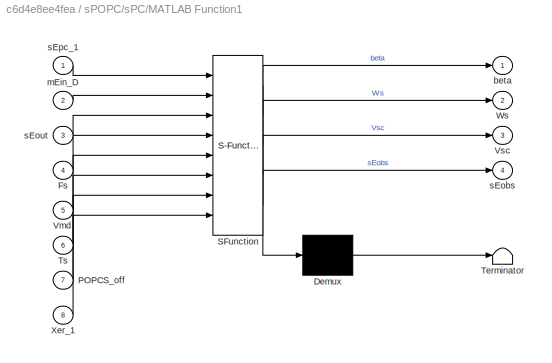
BLOCK [SubSystem] sPOPC/sPC/MATLAB Function1
  ErrorFcn = Stateflow.Translate.translate
  FunctionWithSeparateData = off
  MaskHideContents = off
  MinAlgLoopOccurrences = off
  Opaque = off
  PermitHierarchicalResolution = ExplicitOnly
  Ports = [8, 4]
  PropExecContextOutsideSubsystem = off
  RTWSystemCode = Auto
  RequestExecContextInheritance = off
  SFBlockType = MATLAB Function
  TreatAsAtomicUnit = on
BLOCK [Demux] sPOPC/sPC/MATLAB Function1/ Demux 
  Outputs = 1
  Ports = [1, 1]
BLOCK [S-Function] sPOPC/sPC/MATLAB Function1/ SFunction 
  EnableBusSupport = on
  FunctionName = sf_sfun
  PortCounts = [8 5]
  Ports = [8, 5]
  Tag = Stateflow S-Function simTPDA1 7
BLOCK [Terminator] sPOPC/sPC/MATLAB Function1/ Terminator 
BLOCK [Inport] sPOPC/sPC/MATLAB Function1/Fs
  IconDisplay = Port number
  Port = 4
BLOCK [Inport] sPOPC/sPC/MATLAB Function1/POPCS_off
  IconDisplay = Port number
  Port = 7
BLOCK [Inport] sPOPC/sPC/MATLAB Function1/Ts
  IconDisplay = Port number
  Port = 6
BLOCK [Inport] sPOPC/sPC/MATLAB Function1/Vmd
  IconDisplay = Port number
  Port = 5
BLOCK [Outport] sPOPC/sPC/MATLAB Function1/Vsc
  IconDisplay = Port number
  Port = 3
BLOCK [Outport] sPOPC/sPC/MATLAB Function1/Ws
  IconDisplay = Port number
  Port = 2
BLOCK [Inport] sPOPC/sPC/MATLAB Function1/Xer_1
  IconDisplay = Port number
  Port = 8
BLOCK [Outport] sPOPC/sPC/MATLAB Function1/beta
  IconDisplay = Port number
BLOCK [Inport] sPOPC/sPC/MATLAB Function1/mEin_D
  IconDisplay = Port number
  Port = 2
BLOCK [Outport] sPOPC/sPC/MATLAB Function1/sEobs
  IconDisplay = Port number
  Port = 4
BLOCK [Inport] sPOPC/sPC/MATLAB Function1/sEout
  IconDisplay = Port number
  Port = 3
BLOCK [Inport] sPOPC/sPC/MATLAB Function1/sEpc_1
  IconDisplay = Port number
BLOCK [Constant] sPOPC/sPC/POPCS_off
  Value = POPCS_off
BLOCK [Product] sPOPC/sPC/Product
  InputSameDT = off
  OutDataTypeStr = Inherit: Inherit via internal rule
  Ports = [2, 1]
  RndMeth = Floor
  SaturateOnIntegerOverflow = off
BLOCK [Sum] sPOPC/sPC/Sum
  IconShape = round
  InputSameDT = off
  Inputs = |+-
  OutDataTypeStr = Inherit: Inherit via internal rule
  Ports = [2, 1]
  SaturateOnIntegerOverflow = off
BLOCK [Constant] sPOPC/sPC/Ts
  Value = tSampling
BLOCK [Outport] sPOPC/sPC/Vad
  IconDisplay = Port number
  Port = 3
BLOCK [Inport] sPOPC/sPC/Vmd
  IconDisplay = Port number
  Port = 4
BLOCK [Outport] sPOPC/sPC/Vsc
  IconDisplay = Port number
BLOCK [Scope] sPOPC/sPC/beta
  DataFormat = StructureWithTime
  Floating = off
  LimitDataPoints = off
  NumInputPorts = 3
  Ports = [3]
  SampleTime = 0
  SaveName = ScopeData4
  ShowLegends = off
  TimeRange = 0.01147242455775244
  YMax = 300~15000~5
  YMin = -100~0~-5
BLOCK [Inport] sPOPC/sPC/mEin_D
  IconDisplay = Port number
BLOCK [Inport] sPOPC/sPC/sEout
  IconDisplay = Port number
  Port = 2
BLOCK [Outport] sPOPC/sPC/sEpc
  IconDisplay = Port number
  Port = 2
BLOCK [SubSystem] sPOPC/sPO
  FunctionWithSeparateData = off
  MaskHideContents = off
  MinAlgLoopOccurrences = off
  Opaque = off
  Ports = [2, 2]
  PropExecContextOutsideSubsystem = off
  RTWSystemCode = Auto
  RequestExecContextInheritance = off
BLOCK [Constant] sPOPC/sPO/Constant1
  Value = tSampling
BLOCK [Delay] sPOPC/sPO/Delay2
  DelayLength = 1
  InitialCondition = 0
  InputPortMap = u0
  InputProcessing = Inherited
  Ports = [1, 1]
  SampleTime = tSampling
BLOCK [Delay] sPOPC/sPO/Delay3
  DelayLength = 1
  InitialCondition = 0
  InputPortMap = u0
  InputProcessing = Inherited
  Ports = [1, 1]
  SampleTime = tSampling
BLOCK [Inport] sPOPC/sPO/Fs
  IconDisplay = Port number
BLOCK [Inport] sPOPC/sPO/Vmd
  IconDisplay = Port number
  Port = 2
BLOCK [SubSystem] sPOPC/sPO/s
  ErrorFcn = Stateflow.Translate.translate
  FunctionWithSeparateData = off
  MaskHideContents = off
  MinAlgLoopOccurrences = off
  Opaque = off
  PermitHierarchicalResolution = ExplicitOnly
  Ports = [5, 2]
  PropExecContextOutsideSubsystem = off
  RTWSystemCode = Auto
  RequestExecContextInheritance = off
  SFBlockType = MATLAB Function
  TreatAsAtomicUnit = on
BLOCK [Demux] sPOPC/sPO/s/ Demux 
  Outputs = 1
  Ports = [1, 1]
BLOCK [S-Function] sPOPC/sPO/s/ SFunction 
  EnableBusSupport = on
  FunctionName = sf_sfun
  PortCounts = [5 3]
  Ports = [5, 3]
  Tag = Stateflow S-Function simTPDA1 1
BLOCK [Terminator] sPOPC/sPO/s/ Terminator 
BLOCK [Inport] sPOPC/sPO/s/Fs
  IconDisplay = Port number
BLOCK [Inport] sPOPC/sPO/s/Ts
  IconDisplay = Port number
  Port = 5
BLOCK [Inport] sPOPC/sPO/s/Vmd
  IconDisplay = Port number
  Port = 2
BLOCK [Outport] sPOPC/sPO/s/sEin
  IconDisplay = Port number
BLOCK [Inport] sPOPC/sPO/s/sEin_1
  IconDisplay = Port number
  Port = 3
BLOCK [Outport] sPOPC/sPO/s/sEout
  IconDisplay = Port number
  Port = 2
BLOCK [Inport] sPOPC/sPO/s/sEout_1
  IconDisplay = Port number
  Port = 4
BLOCK [Outport] sPOPC/sPO/sEin
  IconDisplay = Port number
BLOCK [Outport] sPOPC/sPO/sEout
  IconDisplay = Port number
  Port = 2
BLOCK [Constant] xWall
  Value = xWall
ANNOTATION sPOPC: mEinD
LINE Delay:1 -> sPOPC:3
LINE Fh:1 -> Sum:1
LINE Fm:1 -> Mux2:1
LINE Fs:1 -> Mux2:2
LINE Fsd:1 -> Mux2:3
LINE Fw:1 -> Mux2:4
LINE Master/Fm:1 -> Master/Sum:1
LINE Master/Integrator1:1 -> Master/Xm:1
NET Master/Integrator:1 -> Master/Integrator1:1, Master/Vm:1, Master/b :1
LINE Master/Sum:1 -> Master/b 1:1
LINE Master/b 1:1 -> Master/Integrator:1
LINE Master/b :1 -> Master/Sum:2
NET Master:1 -> Subsystem:1, Vm_:1
LINE Master:2 -> Tf:2
LINE Mux1:1 -> Response:3
LINE Mux2:1 -> Response:2
LINE Mux:1 -> Response:1
LINE Slave Controller/Discrete-Time Integrator1:1 -> Slave Controller/Sum3:2
NET Slave Controller/Discrete-Time Integrator:1 -> Slave Controller/Sum3:1, Slave Controller/Xsc:1
LINE Slave Controller/Gain1:1 -> Slave Controller/Sum2:2
LINE Slave Controller/Gain:1 -> Slave Controller/Sum2:1
LINE Slave Controller/Sum1:1 -> Slave Controller/Gain1:1
LINE Slave Controller/Sum2:1 -> Slave Controller/Fs:1
LINE Slave Controller/Sum3:1 -> Slave Controller/Gain:1
NET Slave Controller/Vs:1 -> Slave Controller/Discrete-Time Integrator1:1, Slave Controller/Sum1:2
NET Slave Controller/Vsc:1 -> Slave Controller/Discrete-Time Integrator:1, Slave Controller/Sum1:1
LINE Slave Controller:1 -> Xsc_:1
NET Slave Controller:2 -> Delay:1, Fs_:1, Sum1:1, Tb:1
LINE Slave/Fs:1 -> Slave/Sum:1
LINE Slave/Integrator1:1 -> Slave/Xs:1
NET Slave/Integrator:1 -> Slave/Integrator1:1, Slave/Vs:1, Slave/b :1
LINE Slave/Sum:1 -> Slave/b 1:1
LINE Slave/b 1:1 -> Slave/Integrator:1
LINE Slave/b :1 -> Slave/Sum:2
NET Slave:1 -> Slave Controller:1, Virtual Wall:1, Vs_:1
NET Slave:2 -> Virtual Wall:2, Xs_:1
LINE Subsystem/1//mc:1 -> Subsystem/Integrator:1
NET Subsystem/Constant:1 -> Subsystem/Switch1:2, Subsystem/Switch:2
NET Subsystem/Fmd:1 -> Subsystem/Sum:1, Subsystem/Switch1:3
LINE Subsystem/Integrator1:1 -> Subsystem/Sum1:2
LINE Subsystem/Integrator2:1 -> Subsystem/Sum1:1
NET Subsystem/Integrator:1 -> Subsystem/Integrator1:1, Subsystem/Switch:1
LINE Subsystem/Sum1:1 -> Subsystem/kc:1
LINE Subsystem/Sum:1 -> Subsystem/1//mc:1
LINE Subsystem/Switch1:1 -> Subsystem/Fm:1
LINE Subsystem/Switch:1 -> Subsystem/Vmc:1
NET Subsystem/Vm:1 -> Subsystem/Integrator2:1, Subsystem/Switch:3
NET Subsystem/kc:1 -> Subsystem/Sum:2, Subsystem/Switch1:1
NET Subsystem:1 -> Tf:1, mPOPC:1
NET Subsystem:2 -> Fm_:1, Sum:2
LINE Sum1:1 -> Slave:1
LINE Sum2:1 -> sPOPC:1
NET Sum:1 -> Display:1, Master:1
LINE Tb/Bus Creator:1 -> Tb/BwDelay:1
LINE Tb/Bus Selector:1 -> Tb/sEin_D:1
LINE Tb/Bus Selector:2 -> Tb/fRecv:1
LINE Tb/Bus Selector:3 -> Tb/fRecv:2
LINE Tb/BwDelay/In:1 -> Tb/BwDelay/randDelay:1
NET Tb/BwDelay/randDelay/Constant1:1 -> Tb/BwDelay/randDelay/Switch:1, Tb/BwDelay/randDelay/Switch:2
LINE Tb/BwDelay/randDelay/Constant:1 -> Tb/BwDelay/randDelay/Switch:3
LINE Tb/BwDelay/randDelay/Delay:1 -> Tb/BwDelay/randDelay/inD:1
NET Tb/BwDelay/randDelay/Switch:1 -> Tb/BwDelay/randDelay/Delay:2, Tb/BwDelay/randDelay/Scope:1
LINE Tb/BwDelay/randDelay/in:1 -> Tb/BwDelay/randDelay/Delay:1
LINE Tb/BwDelay/randDelay:1 -> Tb/BwDelay/InD:1
LINE Tb/BwDelay:1 -> Tb/Bus Selector:1
LINE Tb/Fs:1 -> Tb/fSend:1
LINE Tb/Gain:1 -> Tb/Fsd:1
LINE Tb/fRecv/Forward delay4:1 -> Tb/fRecv/MATLAB Function:2
NET Tb/fRecv/MATLAB Function:1 -> Tb/fRecv/Forward delay4:1, Tb/fRecv/y:1
LINE Tb/fRecv/flag:1 -> Tb/fRecv/MATLAB Function:3
LINE Tb/fRecv/u:1 -> Tb/fRecv/MATLAB Function:1
LINE Tb/fRecv:1 -> Tb/Gain:1
LINE Tb/fSend/Constant:1 -> Tb/fSend/MATLAB Function:3
NET Tb/fSend/MATLAB Function:1 -> Tb/fSend/delay 1:1, Tb/fSend/y:1
LINE Tb/fSend/MATLAB Function:2 -> Tb/fSend/flag:1
NET Tb/fSend/MATLAB Function:3 -> Tb/fSend/Total packet:1, Tb/fSend/delay 2:1
NET Tb/fSend/MATLAB Function:4 -> Tb/fSend/Reduced packet:1, Tb/fSend/delay 3:1
LINE Tb/fSend/delay 1:1 -> Tb/fSend/MATLAB Function:2
LINE Tb/fSend/delay 2:1 -> Tb/fSend/MATLAB Function:4
LINE Tb/fSend/delay 3:1 -> Tb/fSend/MATLAB Function:5
LINE Tb/fSend/u:1 -> Tb/fSend/MATLAB Function:1
LINE Tb/fSend:1 -> Tb/Bus Creator:2
LINE Tb/fSend:2 -> Tb/Bus Creator:3
LINE Tb/sEin:1 -> Tb/Bus Creator:1
NET Tb:1 -> Fsd_:1, mPOPC:2
LINE Tb:2 -> mPOPC:3
LINE Tf/Bus Creator:1 -> Tf/FwDelay:1
LINE Tf/Bus Selector:1 -> Tf/mEin_D:1
LINE Tf/Bus Selector:2 -> Tf/vRecv:1
LINE Tf/Bus Selector:3 -> Tf/vRecv:2
LINE Tf/Bus Selector:4 -> Tf/Xmd:1
LINE Tf/FwDelay/In:1 -> Tf/FwDelay/randDelay:1
LINE Tf/FwDelay/randDelay/Constant1:1 -> Tf/FwDelay/randDelay/Switch:2
LINE Tf/FwDelay/randDelay/Constant:1 -> Tf/FwDelay/randDelay/Switch:3
LINE Tf/FwDelay/randDelay/Delay:1 -> Tf/FwDelay/randDelay/inD:1
NET Tf/FwDelay/randDelay/Switch:1 -> Tf/FwDelay/randDelay/Delay:2, Tf/FwDelay/randDelay/Scope:1
LINE Tf/FwDelay/randDelay/Uniform Random Number:1 -> Tf/FwDelay/randDelay/Switch:1
LINE Tf/FwDelay/randDelay/in:1 -> Tf/FwDelay/randDelay/Delay:1
LINE Tf/FwDelay/randDelay:1 -> Tf/FwDelay/InD:1
LINE Tf/FwDelay:1 -> Tf/Bus Selector:1
LINE Tf/Vm:1 -> Tf/vSend:1
LINE Tf/Xm:1 -> Tf/Bus Creator:4
LINE Tf/mEin:1 -> Tf/Bus Creator:1
LINE Tf/vRecv/Forward delay4:1 -> Tf/vRecv/MATLAB Function:2
NET Tf/vRecv/MATLAB Function:1 -> Tf/vRecv/Forward delay4:1, Tf/vRecv/y:1
LINE Tf/vRecv/flag:1 -> Tf/vRecv/MATLAB Function:3
LINE Tf/vRecv/u:1 -> Tf/vRecv/MATLAB Function:1
LINE Tf/vRecv:1 -> Tf/Vmd:1
LINE Tf/vSend/Constant:1 -> Tf/vSend/MATLAB Function:3
NET Tf/vSend/MATLAB Function:1 -> Tf/vSend/delay 1:1, Tf/vSend/y:1
LINE Tf/vSend/MATLAB Function:2 -> Tf/vSend/flag:1
NET Tf/vSend/MATLAB Function:3 -> Tf/vSend/Total packet:1, Tf/vSend/delay 2:1
NET Tf/vSend/MATLAB Function:4 -> Tf/vSend/Reduced packet:1, Tf/vSend/delay 3:1
LINE Tf/vSend/delay 1:1 -> Tf/vSend/MATLAB Function:2
LINE Tf/vSend/delay 2:1 -> Tf/vSend/MATLAB Function:4
LINE Tf/vSend/delay 3:1 -> Tf/vSend/MATLAB Function:5
LINE Tf/vSend/u:1 -> Tf/vSend/MATLAB Function:1
LINE Tf/vSend:1 -> Tf/Bus Creator:2
LINE Tf/vSend:2 -> Tf/Bus Creator:3
LINE Tf:1 -> Xm_:1
NET Tf:2 -> Sum2:1, Vmd_:1
LINE Tf:3 -> sPOPC:2
LINE Virtual Wall/Demux:1 -> Virtual Wall/Force Response:3
LINE Virtual Wall/Demux:2 -> Virtual Wall/Force Response:4
LINE Virtual Wall/Demux:3 -> Virtual Wall/Force Response:5
LINE Virtual Wall/Demux:4 -> Virtual Wall/Force Response:6
LINE Virtual Wall/Force Response:1 -> Virtual Wall/Fw:1
LINE Virtual Wall/VirtualWall:1 -> Virtual Wall/Demux:1
LINE Virtual Wall/Vs:1 -> Virtual Wall/Force Response:2
LINE Virtual Wall/Xs:1 -> Virtual Wall/Force Response:1
NET Virtual Wall:1 -> Fs_1:1, Sum1:2
LINE Vm:1 -> Mux1:1
LINE Vmd:1 -> Mux1:4
LINE Vs:1 -> Mux1:2
LINE Vsc:1 -> Mux1:3
LINE Xm:1 -> Mux:1
LINE Xs:1 -> Mux:2
LINE Xsc:1 -> Mux:3
NET mPOPC/Fsd:1 -> mPOPC/mPC:4, mPOPC/mPO:1
LINE mPOPC/Mux:1 -> mPOPC/Em:1
NET mPOPC/Sum:1 -> mPOPC/Mux:2, mPOPC/Sum1:2
NET mPOPC/Vm:1 -> mPOPC/mPC:3, mPOPC/mPO:2
NET mPOPC/mPC/Constant2:1 -> mPOPC/mPC/Dissipate Energy:4, mPOPC/mPC/MATLAB Function:6
LINE mPOPC/mPC/Constant:1 -> mPOPC/mPC/MATLAB Function:7
NET mPOPC/mPC/Delay1:1 -> mPOPC/mPC/Dissipate Energy:1, mPOPC/mPC/MATLAB Function:1
NET mPOPC/mPC/Dissipate Energy:1 -> mPOPC/mPC/Delay1:1, mPOPC/mPC/mEpc :1
LINE mPOPC/mPC/Fsd:1 -> mPOPC/mPC/MATLAB Function:5
NET mPOPC/mPC/MATLAB Function:1 -> mPOPC/mPC/Dissipate Energy:3, mPOPC/mPC/alpha:1
LINE mPOPC/mPC/MATLAB Function:2 -> mPOPC/mPC/alpha:2
LINE mPOPC/mPC/MATLAB Function:3 -> mPOPC/mPC/Fm:1
LINE mPOPC/mPC/MATLAB Function:4 -> mPOPC/mPC/alpha:3
NET mPOPC/mPC/Vm:1 -> mPOPC/mPC/Dissipate Energy:2, mPOPC/mPC/MATLAB Function:4
LINE mPOPC/mPC/mEout:1 -> mPOPC/mPC/MATLAB Function:3
LINE mPOPC/mPC/sEin_D:1 -> mPOPC/mPC/MATLAB Function:2
LINE mPOPC/mPC:1 -> mPOPC/Fm:1
LINE mPOPC/mPC:2 -> mPOPC/Sum:2
LINE mPOPC/mPO/Constant:1 -> mPOPC/mPO/m:5
LINE mPOPC/mPO/Delay1:1 -> mPOPC/mPO/m:4
LINE mPOPC/mPO/Delay:1 -> mPOPC/mPO/m:3
LINE mPOPC/mPO/Fsd:1 -> mPOPC/mPO/m:1
LINE mPOPC/mPO/Vm:1 -> mPOPC/mPO/m:2
NET mPOPC/mPO/m:1 -> mPOPC/mPO/Delay:1, mPOPC/mPO/mEin:1
NET mPOPC/mPO/m:2 -> mPOPC/mPO/Delay1:1, mPOPC/mPO/mEout:1
NET mPOPC/mPO:1 -> mPOPC/Em1:1, mPOPC/mEin:1
NET mPOPC/mPO:2 -> mPOPC/Em1:2, mPOPC/Sum:1, mPOPC/mPC:2
NET mPOPC/sEin_D:1 -> mPOPC/Mux:1, mPOPC/Sum1:1, mPOPC/mPC:1
LINE mPOPC:1 -> Tf:3
LINE mPOPC:2 -> Subsystem:2
NET sPOPC/Fs:1 -> sPOPC/sPC:3, sPOPC/sPO:1
LINE sPOPC/Mux:1 -> sPOPC/Es:1
LINE sPOPC/Sum1:1 -> sPOPC/Es:2
NET sPOPC/Sum:1 -> sPOPC/Mux:3, sPOPC/Sum1:2, sPOPC/To Workspace:1
NET sPOPC/Vmd:1 -> sPOPC/sPC:4, sPOPC/sPO:2
NET sPOPC/mEin_D:1 -> sPOPC/Mux:1, sPOPC/Sum1:1, sPOPC/To Workspace1:1, sPOPC/sPC:1
LINE sPOPC/sPC/Delay3:1 -> sPOPC/sPC/Product:1
LINE sPOPC/sPC/Delay4:1 -> sPOPC/sPC/Product:2
NET sPOPC/sPC/Delay:1 -> sPOPC/sPC/Dissipate Energy:1, sPOPC/sPC/MATLAB Function1:1
LINE sPOPC/sPC/Discrete-Time Integrator1:1 -> sPOPC/sPC/Sum:2
LINE sPOPC/sPC/Discrete-Time Integrator:1 -> sPOPC/sPC/Sum:1
NET sPOPC/sPC/Dissipate Energy:1 -> sPOPC/sPC/Delay:1, sPOPC/sPC/sEpc:1
NET sPOPC/sPC/Fs:1 -> sPOPC/sPC/Delay3:1, sPOPC/sPC/Dissipate Energy:2, sPOPC/sPC/MATLAB Function1:4
LINE sPOPC/sPC/Gain:1 -> sPOPC/sPC/Vad:1
NET sPOPC/sPC/MATLAB Function1:1 -> sPOPC/sPC/Delay4:1, sPOPC/sPC/Dissipate Energy:3, sPOPC/sPC/beta:2
LINE sPOPC/sPC/MATLAB Function1:2 -> sPOPC/sPC/beta:1
NET sPOPC/sPC/MATLAB Function1:3 -> sPOPC/sPC/Discrete-Time Integrator1:1, sPOPC/sPC/Vsc:1
LINE sPOPC/sPC/MATLAB Function1:4 -> sPOPC/sPC/beta:3
LINE sPOPC/sPC/POPCS_off:1 -> sPOPC/sPC/MATLAB Function1:7
LINE sPOPC/sPC/Product:1 -> sPOPC/sPC/Gain:1
LINE sPOPC/sPC/Sum:1 -> sPOPC/sPC/MATLAB Function1:8
NET sPOPC/sPC/Ts:1 -> sPOPC/sPC/Dissipate Energy:4, sPOPC/sPC/MATLAB Function1:6
NET sPOPC/sPC/Vmd:1 -> sPOPC/sPC/Discrete-Time Integrator:1, sPOPC/sPC/MATLAB Function1:5
LINE sPOPC/sPC/mEin_D:1 -> sPOPC/sPC/MATLAB Function1:2
LINE sPOPC/sPC/sEout:1 -> sPOPC/sPC/MATLAB Function1:3
LINE sPOPC/sPC:1 -> sPOPC/Vsc:1
LINE sPOPC/sPC:2 -> sPOPC/Sum:2
LINE sPOPC/sPC:3 -> sPOPC/Vad:1
LINE sPOPC/sPO/Constant1:1 -> sPOPC/sPO/s:5
LINE sPOPC/sPO/Delay2:1 -> sPOPC/sPO/s:3
LINE sPOPC/sPO/Delay3:1 -> sPOPC/sPO/s:4
LINE sPOPC/sPO/Fs:1 -> sPOPC/sPO/s:1
LINE sPOPC/sPO/Vmd:1 -> sPOPC/sPO/s:2
NET sPOPC/sPO/s:1 -> sPOPC/sPO/Delay2:1, sPOPC/sPO/sEin:1
NET sPOPC/sPO/s:2 -> sPOPC/sPO/Delay3:1, sPOPC/sPO/sEout:1
LINE sPOPC/sPO:1 -> sPOPC/sEin:1
NET sPOPC/sPO:2 -> sPOPC/Sum:1, sPOPC/sPC:2
LINE sPOPC:1 -> Sum2:2
NET sPOPC:2 -> Slave Controller:2, Vsc_:1
LINE sPOPC:3 -> Tb:2
LINE xWall:1 -> Mux:4
note: NET lines group one-source signal fan-out (src -> all destinations, sorted); 1:1 wires keep LINE
